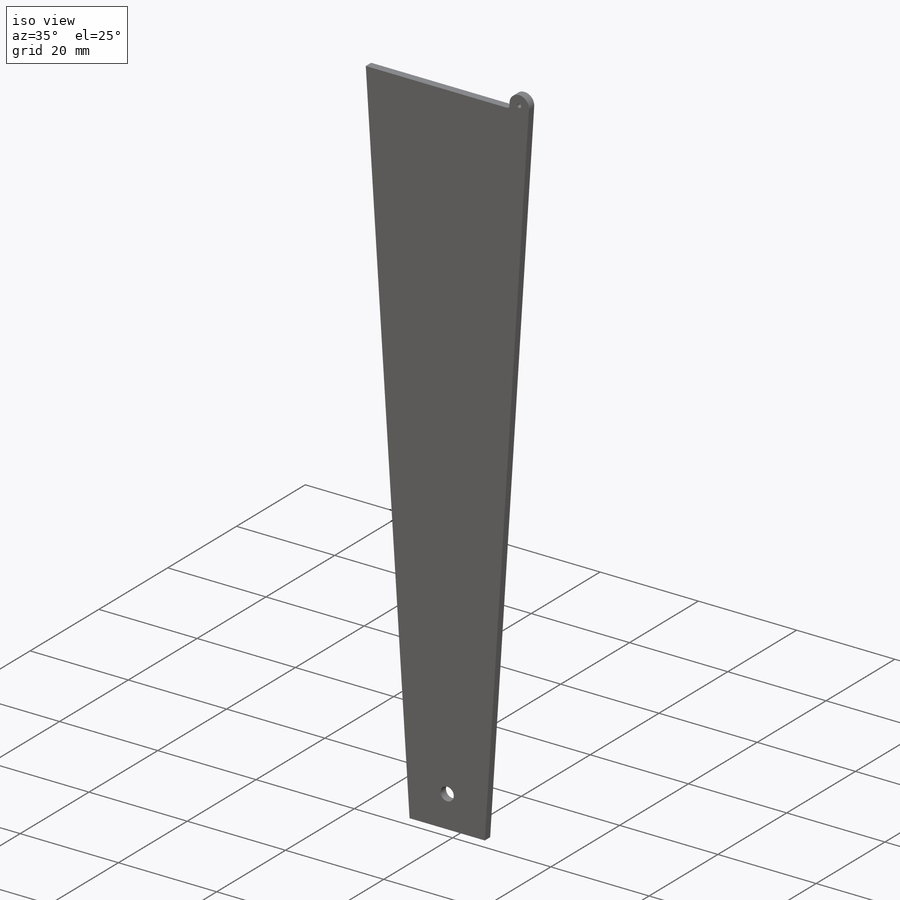
[diagram: iso view]
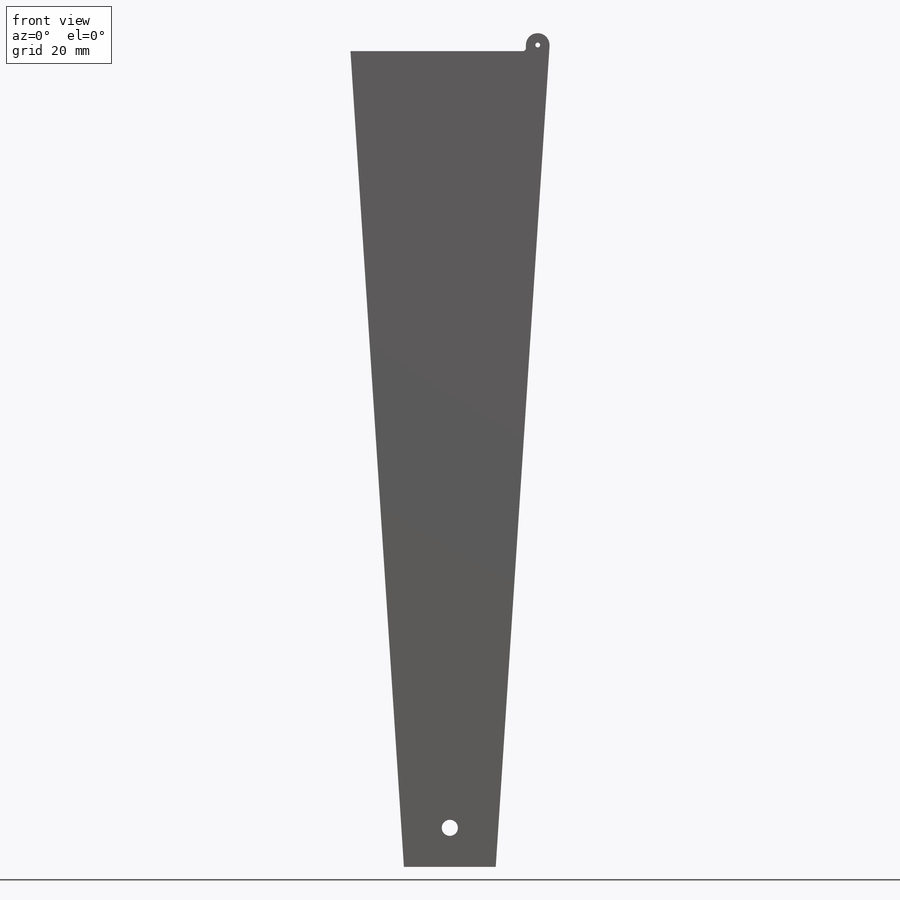
[diagram: front view]
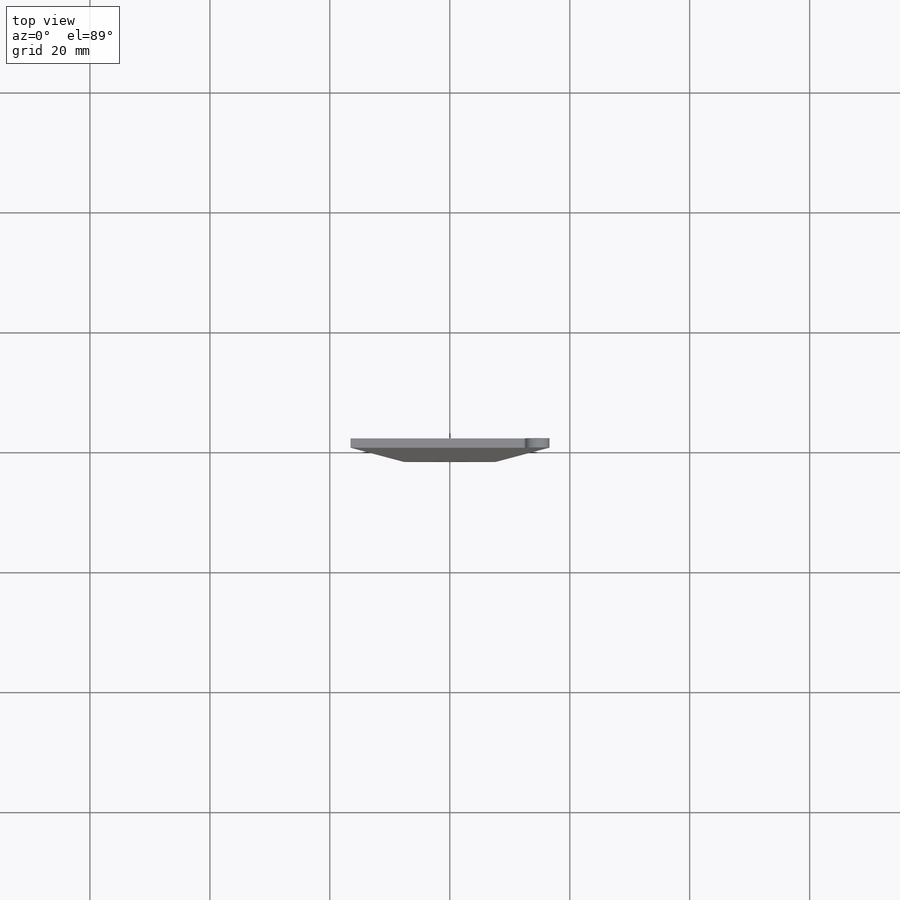
[diagram: top view]
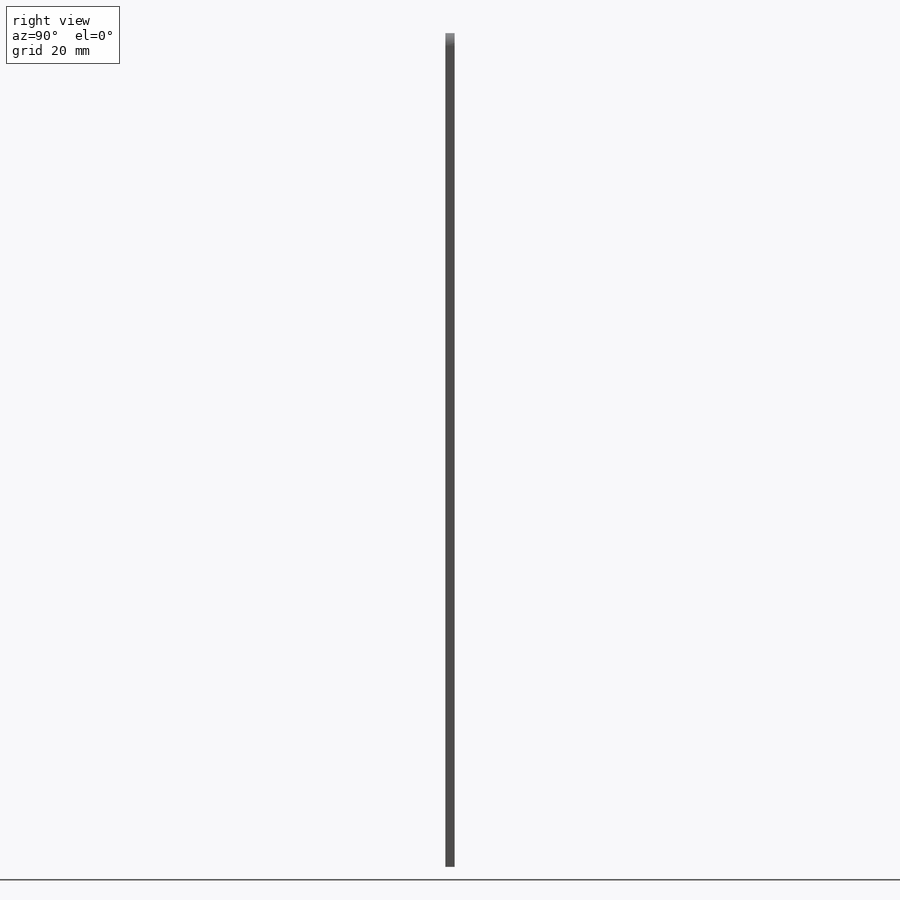
[diagram: right view]
SOLIDWORKS PART (.sldprt)
format: sldprt  version: not decoded by parser v0  size: 352,256 bytes
history: native  units: mm
features: sketch x4, plane x3, extrude x2, cut_extrude x2, material x1, fillet x1 + 2 further entries (+12 scaffold rows collapsed)
feature tree (27):
  scaffold x12  (default folders/planes/origin — collapsed)
  material  "Material <not specified>"
  plane  "Plane1"
  plane  "Plane2"
  plane  "Plane3"
  "Axis2"
  "Axis3"
  sketch  "Sketch1"  dims[c1.D1=235.48mm c1.D2=35.0mm c1.D3=~133.057691mm c2.D3=15.0deg c2.D1=175.0mm c2.D4=170.0mm c3.D1=171.0mm c3.D4=3.5mm c3.D3=136.0mm c4.D3=7.5deg c4.D4=~15.311001mm]
  extrude  "Extrude1"  Depth=1.56mm
  sketch  "Sketch2"  dims[c1.D1=2.6924mm c1.D2=3.556mm c1.D3=3.556mm c1.D4=~0.79375mm c1.D5=1.5875mm c1.D6=2.6924mm c1.D7=2.6924mm c1.D8=2.6924mm c1.D9=2.6924mm c1.D10=2.6924mm c2.D7=2.6924mm c2.D9=2.6924mm c3.D7=2.6924mm c3.D9=2.6924mm c3.D6=1.5875mm c3.D8=1.5875mm c4.D9=2.6924mm c4.D10=~165.073514mm c5.D9=2.6924mm c5.D11=2.6924mm c6.D9=~1.59258mm c6.D8=2.6924mm c6.D3=6.0mm c6.D5=4.5mm c6.D6=3.5mm c6.D7=132.0mm c7.D8=~20.189544mm c7.D9=2.0mm c7.D10=3.0mm c7.D3=2.0mm c7.D7=3.0mm c8.D9=6.0mm c8.D3=6.5mm c8.D7=3.0mm c9.D9=2.0mm c9.D6=13.0mm c9.D8=1.5mm c10.D9=~4.376152mm c10.D6=~106.405964mm c10.D7=161.0mm c10.D8=0.25mm c11.D9=1.5mm c11.D10=~2.29375mm c11.D5=37.5mm c12.D9=17.5mm c12.D8=18.0mm c12.D6=~1.726962mm]
  cut_extrude  "Cut-Extrude2"  [1 undecoded]
  sketch  "Sketch4"  dims[c1.D1=~1.975972mm c1.D2=~1.975972mm c2.D1=3.0mm c2.D2=~1.024028mm]
  extrude  "Extrude2"  [1 undecoded]
  fillet  "Fillet1"  Radius=0.5mm
  sketch  "Sketch5"  dims[D1=~0.79375mm]
  cut_extrude  "Extrude3"  [1 undecoded]
decode coverage: 6 of 9 modeling features carry decoded parameters; 2 rows unclassified (native names shown)
note: ~ marks probable driven/reference dimensions
note: 3 parameter values undecoded
summary: no parameter record found for 3 features
note: suppression state not decoded; provenance and decode notes live in map.json
